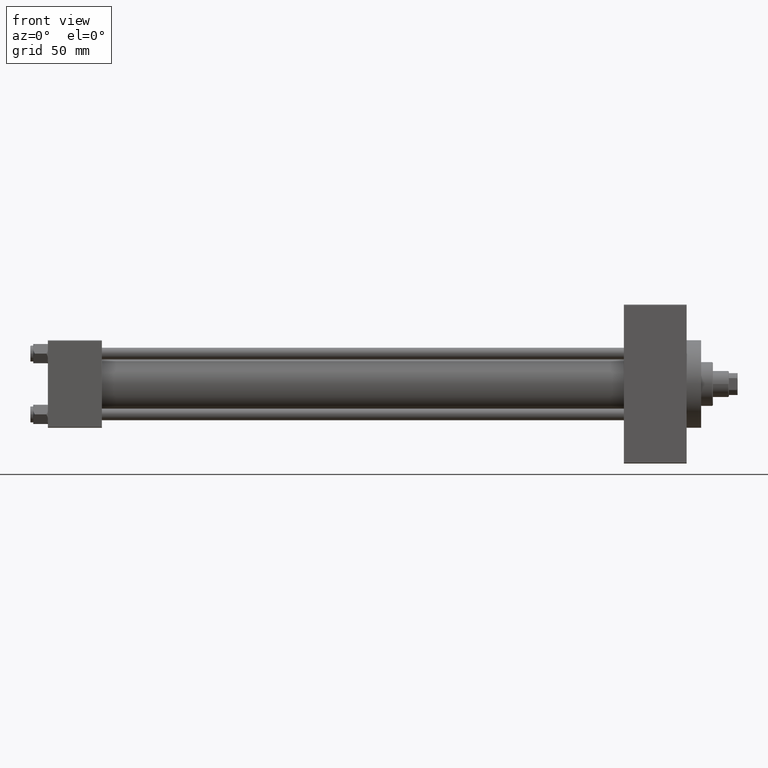
[diagram: clean part render]
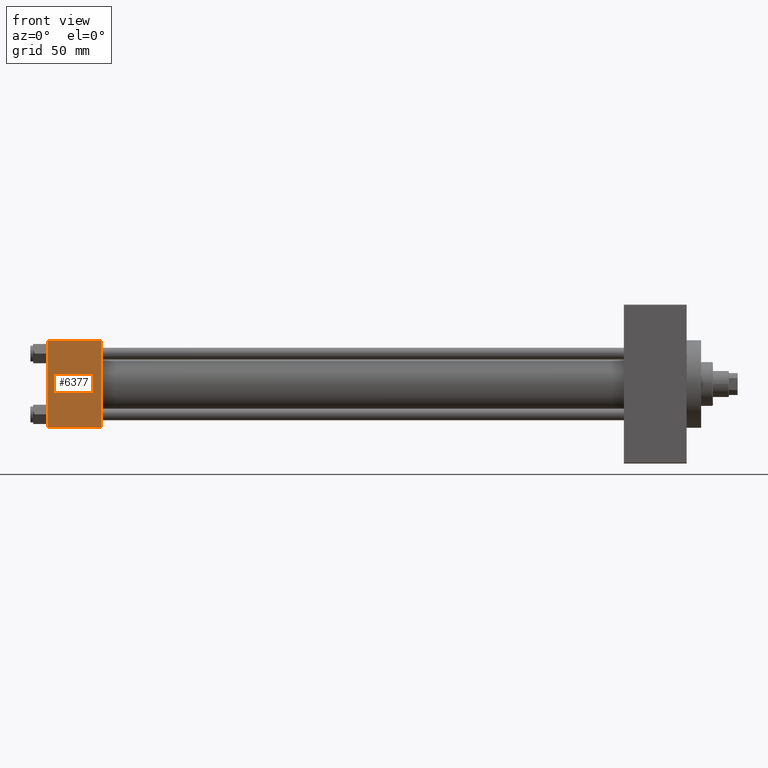
[diagram: same view with one face highlighted and labeled with its STEP entity id]
A machine part, front view. The second image highlights one B-rep face of the part: STEP entity #6377.
In plain terms, the highlighted planar face has unit normal (0, 1, 0).
Its self-contained STEP definition (entity closure, byte-faithful):
#1583 = VERTEX_POINT ( 'NONE', #32431 ) ;
#3546 = CARTESIAN_POINT ( 'NONE',  ( 37.00000000000000000, -30.00000000000000000, -29.50000000000001776 ) ) ;
#3678 = VECTOR ( 'NONE', #12762, 1000.000000000000000 ) ;
#5315 = EDGE_CURVE ( 'NONE', #1583, #15981, #8781, .T. ) ;
#6377 = ADVANCED_FACE ( 'NONE', ( #9260 ), #46208, .F. ) ;
#8781 = LINE ( 'NONE', #46443, #25928 ) ;
#9260 = FACE_OUTER_BOUND ( 'NONE', #10871, .T. ) ;
#10871 = EDGE_LOOP ( 'NONE', ( #29203, #13949, #41551, #40609 ) ) ;
#11031 = EDGE_CURVE ( 'NONE', #40698, #15981, #43194, .T. ) ;
#11040 = LINE ( 'NONE', #45453, #48927 ) ;
#12762 = DIRECTION ( 'NONE',  ( 1.000000000000000000, 0.000000000000000000, 0.000000000000000000 ) ) ;
#13949 = ORIENTED_EDGE ( 'NONE', *, *, #11031, .T. ) ;
#15981 = VERTEX_POINT ( 'NONE', #3546 ) ;
#16134 = EDGE_CURVE ( 'NONE', #1583, #32772, #31950, .T. ) ;
#17090 = CARTESIAN_POINT ( 'NONE',  ( 0.000000000000000000, -30.00000000000000000, -29.50000000000001776 ) ) ;
#20003 = DIRECTION ( 'NONE',  ( -0.000000000000000000, 1.000000000000000000, 0.000000000000000000 ) ) ;
#22243 = CARTESIAN_POINT ( 'NONE',  ( 0.000000000000000000, -30.00000000000000000, 29.49999999999999289 ) ) ;
#25928 = VECTOR ( 'NONE', #43192, 1000.000000000000000 ) ;
#28346 = AXIS2_PLACEMENT_3D ( 'NONE', #35713, #20003, #43201 ) ;
#29203 = ORIENTED_EDGE ( 'NONE', *, *, #37231, .T. ) ;
#31950 = LINE ( 'NONE', #32667, #38921 ) ;
#32431 = CARTESIAN_POINT ( 'NONE',  ( 37.00000000000000000, -30.00000000000000000, 29.49999999999999289 ) ) ;
#32667 = CARTESIAN_POINT ( 'NONE',  ( 37.00000000000000000, -30.00000000000000000, 29.49999999999999289 ) ) ;
#32772 = VERTEX_POINT ( 'NONE', #22243 ) ;
#33727 = DIRECTION ( 'NONE',  ( 0.000000000000000000, 0.000000000000000000, -1.000000000000000000 ) ) ;
#35713 = CARTESIAN_POINT ( 'NONE',  ( 37.00000000000000000, -30.00000000000000000, 29.99999999999999289 ) ) ;
#37231 = EDGE_CURVE ( 'NONE', #32772, #40698, #11040, .T. ) ;
#38921 = VECTOR ( 'NONE', #43648, 1000.000000000000000 ) ;
#39683 = CARTESIAN_POINT ( 'NONE',  ( 37.00000000000000000, -30.00000000000000000, -29.50000000000001776 ) ) ;
#40609 = ORIENTED_EDGE ( 'NONE', *, *, #16134, .T. ) ;
#40698 = VERTEX_POINT ( 'NONE', #17090 ) ;
#41551 = ORIENTED_EDGE ( 'NONE', *, *, #5315, .F. ) ;
#43192 = DIRECTION ( 'NONE',  ( 0.000000000000000000, 0.000000000000000000, -1.000000000000000000 ) ) ;
#43194 = LINE ( 'NONE', #39683, #3678 ) ;
#43201 = DIRECTION ( 'NONE',  ( 0.000000000000000000, -0.000000000000000000, 1.000000000000000000 ) ) ;
#43648 = DIRECTION ( 'NONE',  ( -1.000000000000000000, 0.000000000000000000, 0.000000000000000000 ) ) ;
#45453 = CARTESIAN_POINT ( 'NONE',  ( 0.000000000000000000, -30.00000000000000000, 29.99999999999999289 ) ) ;
#46208 = PLANE ( 'NONE',  #28346 ) ;
#46443 = CARTESIAN_POINT ( 'NONE',  ( 37.00000000000000000, -30.00000000000000000, 29.99999999999999289 ) ) ;
#48927 = VECTOR ( 'NONE', #33727, 1000.000000000000000 ) ;